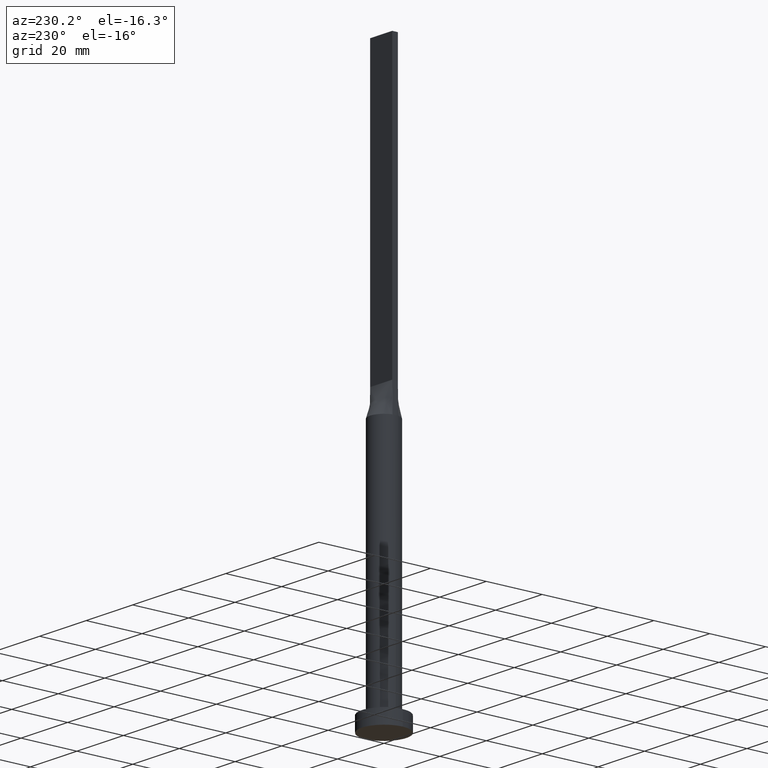
[diagram: clean part render]
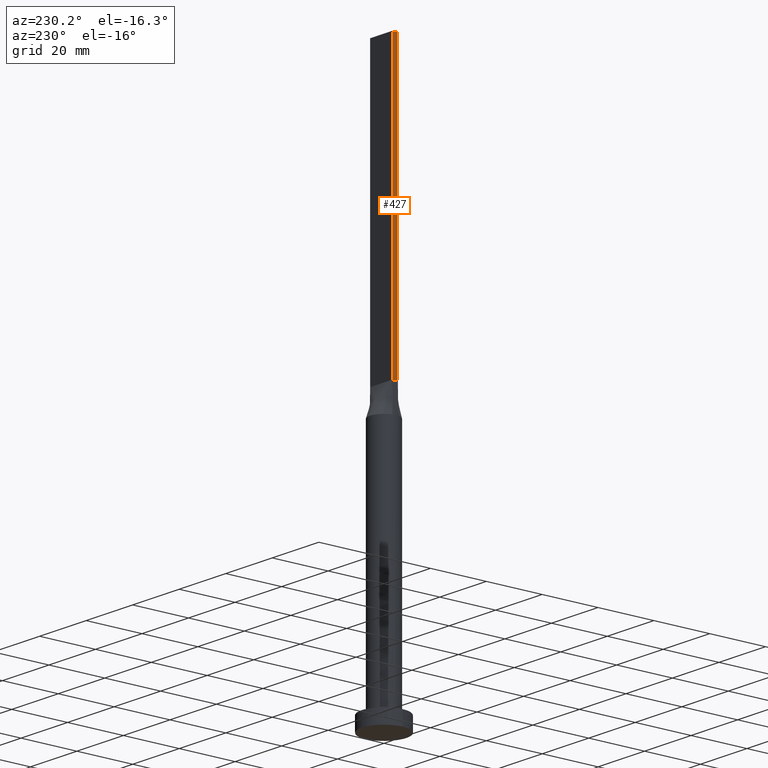
[diagram: same view with one face highlighted and labeled with its STEP entity id]
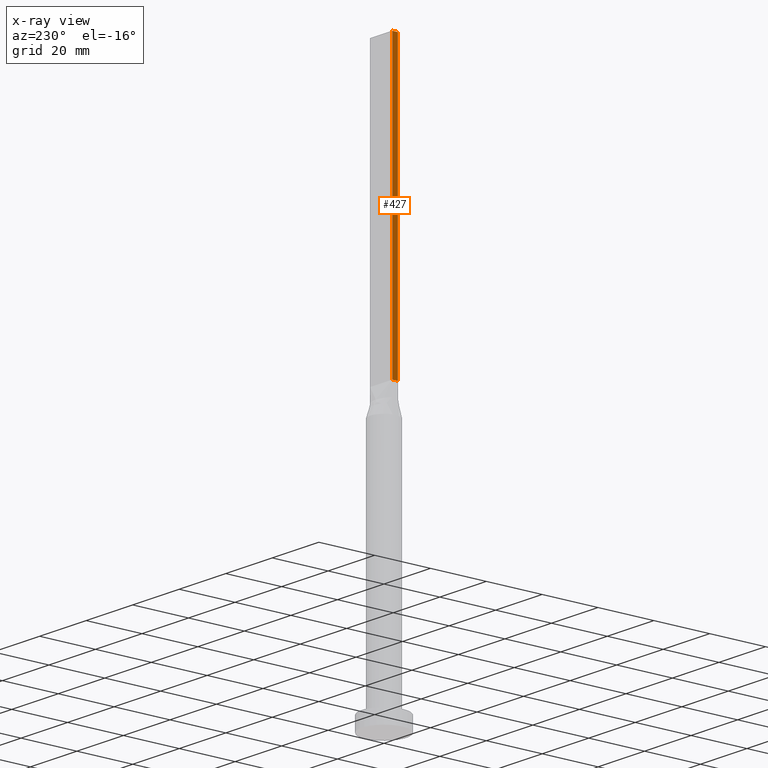
[diagram: x-ray of the same camera — body ghosted, the highlighted face saturated]
A machine part, auxiliary view. The second image highlights one B-rep face of the part: STEP entity #427.
The next image is the same camera in x-ray: the body ghosted, the highlighted face saturated — about 0% of this face is hidden behind the body in this view.
In plain terms, the highlighted planar face has unit normal (1, 0, -0).
Its self-contained STEP definition (entity closure, byte-faithful):
#3 = VERTEX_POINT ( 'NONE', #250 ) ;
#11 = FACE_OUTER_BOUND ( 'NONE', #283, .T. ) ;
#22 = DIRECTION ( 'NONE',  ( 0.000000000000000000, -1.000000000000000000, 0.000000000000000000 ) ) ;
#23 = CARTESIAN_POINT ( 'NONE',  ( -4.750000000000000000, 1.000000000000000000, 100.0000000000000000 ) ) ;
#64 = CARTESIAN_POINT ( 'NONE',  ( -4.750000000000000000, 1.000000000000000000, 200.0000000000000000 ) ) ;
#71 = DIRECTION ( 'NONE',  ( 1.000000000000000000, 0.000000000000000000, -0.000000000000000000 ) ) ;
#73 = VERTEX_POINT ( 'NONE', #64 ) ;
#110 = DIRECTION ( 'NONE',  ( -0.000000000000000000, -0.000000000000000000, -1.000000000000000000 ) ) ;
#135 = VECTOR ( 'NONE', #527, 1000.000000000000000 ) ;
#136 = VERTEX_POINT ( 'NONE', #167 ) ;
#148 = LINE ( 'NONE', #396, #364 ) ;
#152 = PLANE ( 'NONE',  #391 ) ;
#167 = CARTESIAN_POINT ( 'NONE',  ( -4.750000000000000000, -0.9999999999999991118, 200.0000000000000000 ) ) ;
#221 = VECTOR ( 'NONE', #110, 1000.000000000000000 ) ;
#245 = LINE ( 'NONE', #382, #135 ) ;
#250 = CARTESIAN_POINT ( 'NONE',  ( -4.750000000000000000, -0.9999999999999991118, 100.0000000000000000 ) ) ;
#263 = VERTEX_POINT ( 'NONE', #23 ) ;
#283 = EDGE_LOOP ( 'NONE', ( #328, #511, #592, #369 ) ) ;
#302 = LINE ( 'NONE', #429, #491 ) ;
#328 = ORIENTED_EDGE ( 'NONE', *, *, #542, .T. ) ;
#341 = CARTESIAN_POINT ( 'NONE',  ( -4.750000000000000000, -0.9999999999999991118, 200.0000000000000000 ) ) ;
#364 = VECTOR ( 'NONE', #399, 1000.000000000000000 ) ;
#369 = ORIENTED_EDGE ( 'NONE', *, *, #565, .T. ) ;
#382 = CARTESIAN_POINT ( 'NONE',  ( -4.750000000000000000, 1.000000000000000000, 200.0000000000000000 ) ) ;
#391 = AXIS2_PLACEMENT_3D ( 'NONE', #486, #71, #572 ) ;
#396 = CARTESIAN_POINT ( 'NONE',  ( -4.750000000000000000, 1.000000000000000000, 100.0000000000000000 ) ) ;
#399 = DIRECTION ( 'NONE',  ( 0.000000000000000000, -1.000000000000000000, 0.000000000000000000 ) ) ;
#427 = ADVANCED_FACE ( 'NONE', ( #11 ), #152, .F. ) ;
#429 = CARTESIAN_POINT ( 'NONE',  ( -4.750000000000000000, 1.000000000000000000, 200.0000000000000000 ) ) ;
#443 = LINE ( 'NONE', #341, #221 ) ;
#460 = EDGE_CURVE ( 'NONE', #73, #136, #302, .T. ) ;
#486 = CARTESIAN_POINT ( 'NONE',  ( -4.750000000000000000, 1.000000000000000000, 200.0000000000000000 ) ) ;
#491 = VECTOR ( 'NONE', #22, 1000.000000000000000 ) ;
#505 = EDGE_CURVE ( 'NONE', #136, #3, #443, .T. ) ;
#511 = ORIENTED_EDGE ( 'NONE', *, *, #505, .F. ) ;
#527 = DIRECTION ( 'NONE',  ( -0.000000000000000000, -0.000000000000000000, -1.000000000000000000 ) ) ;
#542 = EDGE_CURVE ( 'NONE', #263, #3, #148, .T. ) ;
#565 = EDGE_CURVE ( 'NONE', #73, #263, #245, .T. ) ;
#572 = DIRECTION ( 'NONE',  ( -0.000000000000000000, 0.000000000000000000, -1.000000000000000000 ) ) ;
#592 = ORIENTED_EDGE ( 'NONE', *, *, #460, .F. ) ;